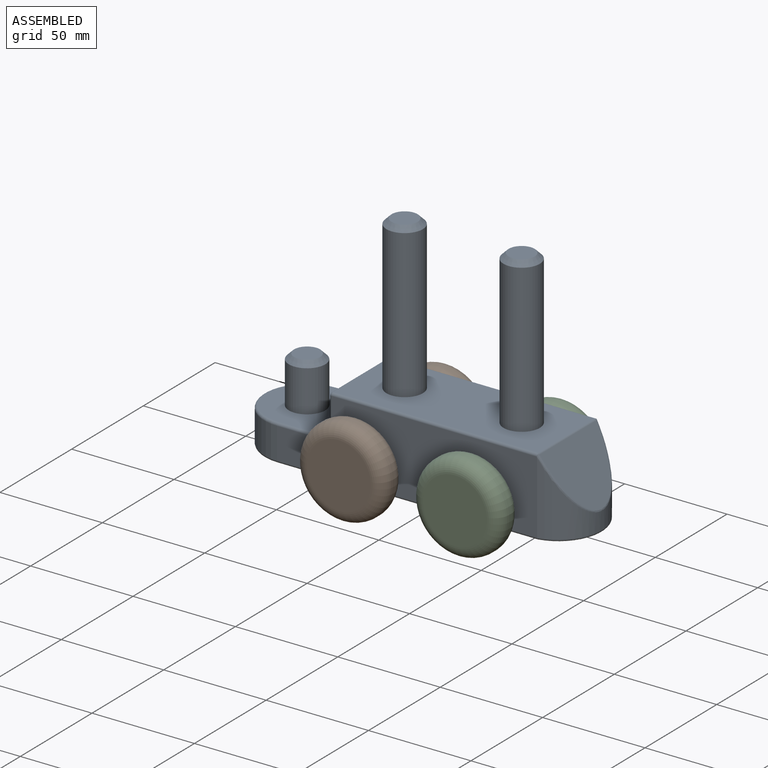
[diagram: assembled view]
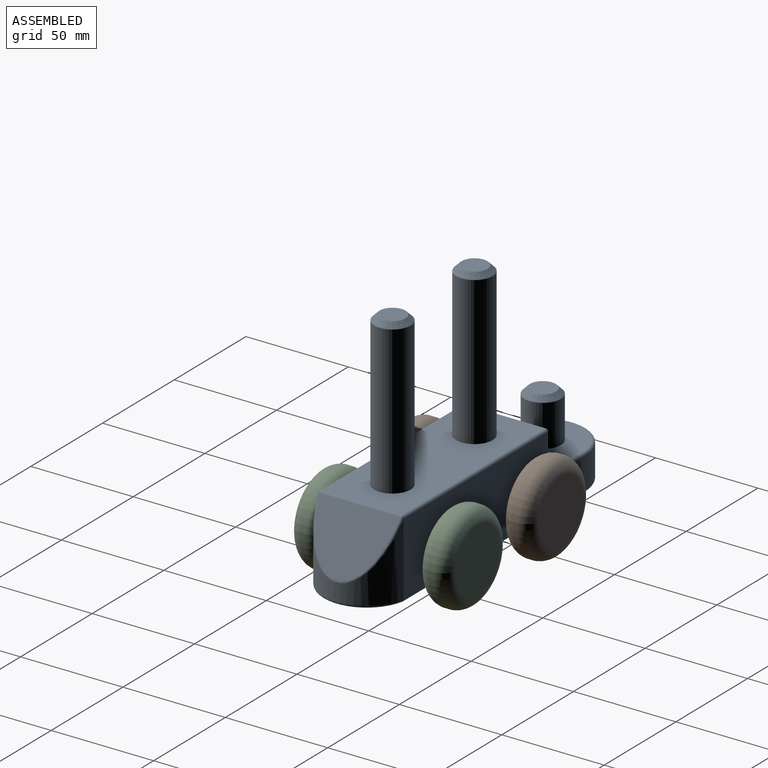
[diagram: assembled view, second angle]
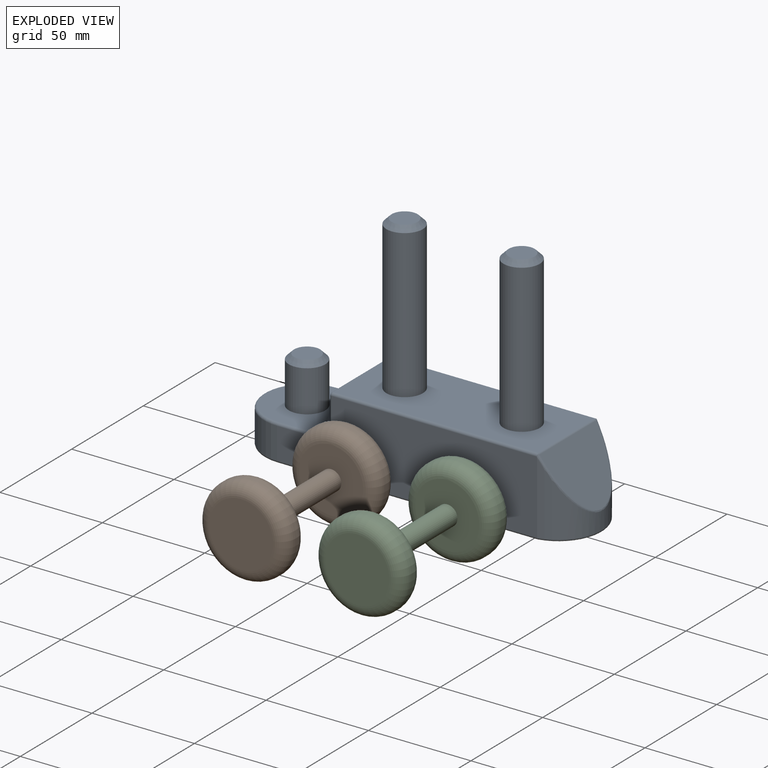
[diagram: exploded view]
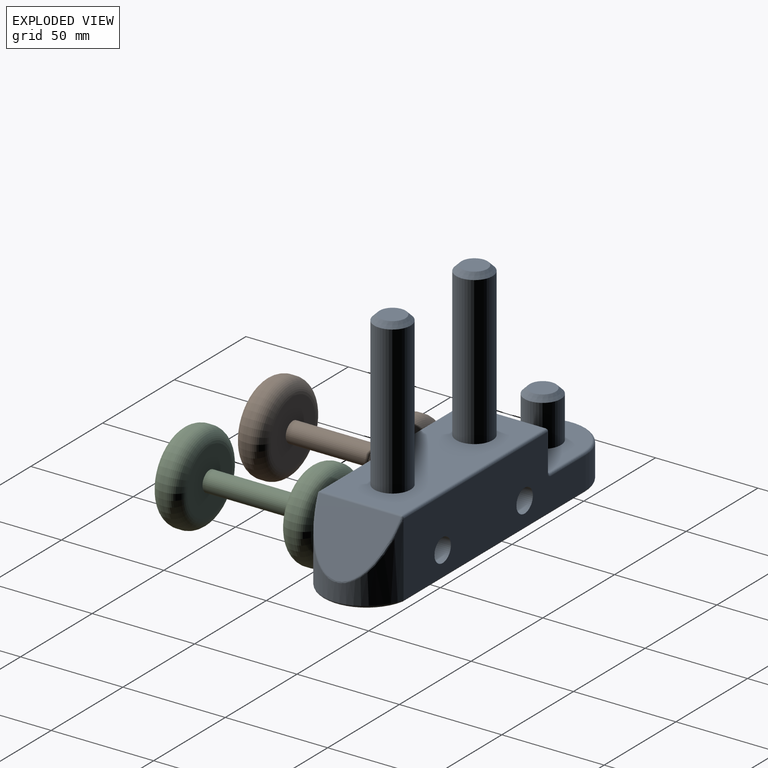
[diagram: exploded view, second angle]
ASSEMBLY  parts=3 mates=2
PART A: 39 faces, bbox 168.6x45.4x113.1 mm
  f0: plane 43.82x39.37mm, normal (0,0,1), area 1310.4mm2, adj f6,f20,f21,f22,f23
  f1: plane 127.06x35.62mm, normal (0,-1,0), area 3770.3mm2, adj f2,f4,f18,f19,f22,f25,f27,f32
  f2: cylinder r=21.38mm len=41.91mm, axis (0,0,-1), area 1048.5mm2, adj f1,f3,f36,f38
  f3: plane 127.06x35.62mm, normal (0,1,0), area 3770.3mm2, adj f2,f4,f18,f19,f21,f24,f26,f31
  f4: cylinder r=20.96mm len=41.91mm, axis (0,0,-1), area 1003.3mm2, adj f1,f3,f20,f35
  f5: plane 162.56x39.37mm, normal (0,0,-1), area 6074.8mm2, adj f34,f35,f36,f37
  f6: cylinder r=8.89mm len=20.32mm, axis (0,0,-1), area 1135mm2, adj f0,f14
  f7: plane 12.7x12.7mm, normal (0,0,1), area 126.7mm2, adj f14
  f8: plane 39.37x17.78mm, normal (-1,0,0), area 700mm2, adj f23,f26,f27,f28
  f9: plane 99.62x39.37mm, normal (0,0,1), area 3425.4mm2, adj f11,f13,f28,f31,f32,f33
  f10: plane 12.7x12.7mm, normal (0,0,1), area 126.7mm2, adj f15
  f11: cylinder r=8.89mm len=72.39mm, axis (0,0,-1), area 4043.5mm2, adj f9,f15
  f12: plane 12.7x12.7mm, normal (0,0,1), area 126.7mm2, adj f16
  f13: cylinder r=8.89mm len=72.39mm, axis (0,0,-1), area 4043.5mm2, adj f9,f16
  f14: cone r=6.35mm half-angle=45deg, axis (0,0,-1), area 172mm2, adj f6,f7
  f15: cone r=6.35mm half-angle=45deg, axis (0,0,-1), area 172mm2, adj f10,f11
  f16: cone r=6.35mm half-angle=45deg, axis (0,0,-1), area 172mm2, adj f12,f13
  f17: plane 39.59x27.03mm, normal (0.85,0,0.52), area 944.9mm2, adj f33,f38
  f18: cylinder r=5.71mm len=41.91mm, axis (0,-1,0), area 1504.9mm2, adj f1,f3
  f19: cylinder r=5.71mm len=41.91mm, axis (0,-1,0), area 1504.9mm2, adj f1,f3
  f20: torus R=19.69mm, axis (0,0,1), area 128.4mm2, adj f0,f4,f21,f22
  f21: cylinder r=1.27mm len=24.13mm, axis (1,0,0), area 48.1mm2, adj f0,f3,f20,f24
  f22: cylinder r=1.27mm len=24.13mm, axis (-1,0,0), area 48.1mm2, adj f0,f1,f20,f25
  f23: cylinder r=1.27mm len=39.37mm, axis (0,1,0), area 78.5mm2, adj f0,f8,f24,f25
  f24: torus R=2.54mm, axis (0,1,0), area 5.4mm2, adj f3,f21,f23,f26
  f25: torus R=2.54mm, axis (0,1,0), area 5.4mm2, adj f1,f22,f23,f27
  f26: cylinder r=1.27mm len=17.78mm, axis (0,0,1), area 35.5mm2, adj f3,f8,f24,f29
  f27: cylinder r=1.27mm len=17.78mm, axis (0,0,-1), area 35.5mm2, adj f1,f8,f25,f30
  f28: cylinder r=1.27mm len=39.37mm, axis (0,1,0), area 78.5mm2, adj f8,f9,f29,f30
  f29: sphere r=1.27mm, area 2.5mm2, adj f26,f28,f31
  f30: sphere r=1.27mm, area 1.6mm2, adj f27,f28,f32
  f31: cylinder r=1.27mm len=100.32mm, axis (1,0,0), area 199.8mm2, adj f3,f9,f29,f33,f38
  f32: cylinder r=1.27mm len=100.32mm, axis (-1,0,0), area 199.8mm2, adj f1,f9,f30,f33,f38
  f33: cylinder r=1.27mm len=40.77mm, axis (0,1,0), area 52mm2, adj f9,f17,f31,f32,f38
  f34: cylinder r=1.27mm len=127mm, axis (-1,0,0), area 253.2mm2, adj f3,f5,f35,f36
  f35: torus R=19.69mm, axis (0,0,1), area 128.4mm2, adj f4,f5,f34,f37
  f36: torus R=20.11mm, axis (0,0,1), area 114.2mm2, adj f2,f5,f34,f37
  f37: cylinder r=1.27mm len=127mm, axis (1,0,0), area 253.2mm2, adj f1,f5,f35,f36
  f38: bspline ~42.21x28.18mm, area 99.7mm2, adj f1,f2,f3,f17,f31,f32,f33
PART B: 11 faces, bbox 47.7x77.2x47.7 mm
  f0: plane 31.33x31.33mm, normal (0,1,0), area 694mm2, adj f3,f5
  f1: cylinder r=22.02mm len=44.03mm, axis (0,1,0), area 245.7mm2, adj f3,f4
  f2: plane 31.33x31.33mm, normal (0,-1,0), area 771.1mm2, adj f4
  f3: torus R=15.67mm, axis (0,1,0), area 1235.2mm2, adj f0,f1
  f4: torus R=15.67mm, axis (0,1,0), area 1235.2mm2, adj f1,f2
  f5: cylinder r=4.95mm len=48.26mm, axis (0,1,0), area 1501.9mm2, adj f0,f10
  f6: plane 31.33x31.33mm, normal (0,1,0), area 771.1mm2, adj f7
  f7: torus R=15.67mm, axis (0,-1,0), area 1235.2mm2, adj f6,f8
  f8: cylinder r=22.02mm len=44.03mm, axis (0,-1,0), area 245.7mm2, adj f7,f9
  f9: torus R=15.67mm, axis (0,-1,0), area 1235.2mm2, adj f8,f10
  f10: plane 31.33x31.33mm, normal (0,-1,0), area 694mm2, adj f5,f9
PART C: 11 faces, bbox 47.7x77.2x47.7 mm
  f0: cylinder r=4.95mm len=48.26mm, axis (0,1,0), area 1501.9mm2, adj f1,f6
  f1: plane 31.33x31.33mm, normal (0,1,0), area 694mm2, adj f0,f4
  f2: cylinder r=22.02mm len=44.03mm, axis (0,1,0), area 245.7mm2, adj f4,f5
  f3: plane 31.33x31.33mm, normal (0,-1,0), area 771.1mm2, adj f5
  f4: torus R=15.67mm, axis (0,1,0), area 1235.2mm2, adj f1,f2
  f5: torus R=15.67mm, axis (0,1,0), area 1235.2mm2, adj f2,f3
  f6: plane 31.33x31.33mm, normal (0,-1,0), area 694mm2, adj f0,f9
  f7: cylinder r=22.02mm len=44.03mm, axis (0,-1,0), area 245.7mm2, adj f9,f10
  f8: plane 31.33x31.33mm, normal (0,1,0), area 771.1mm2, adj f10
  f9: torus R=15.67mm, axis (0,-1,0), area 1235.2mm2, adj f6,f7
  f10: torus R=15.67mm, axis (0,-1,0), area 1235.2mm2, adj f7,f8
PLACE A at identity fixed
PLACE B at identity
PLACE C t=(0,-0.64,0)mm
MATE revolute B.f1 <-> A.f19  axis (0,1,0) through (42.55,0,12.7)mm
MATE revolute C.f0 <-> A.f18  axis (0,1,0) through (99.7,-0.64,12.7)mm
